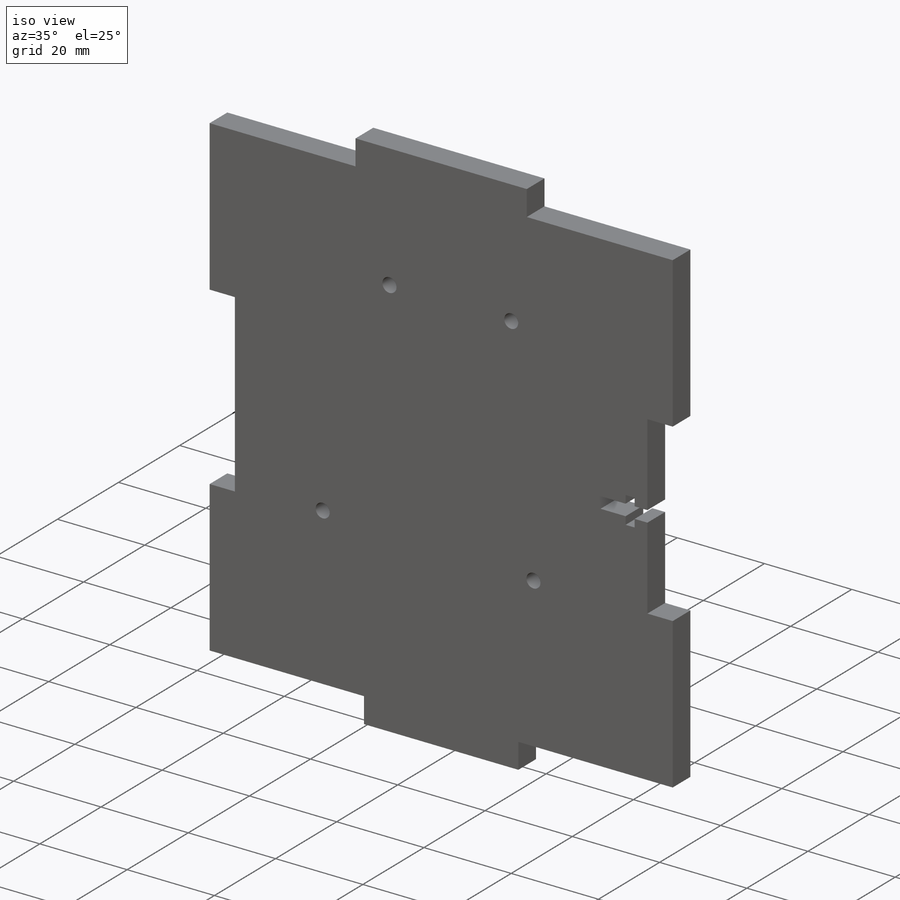
[diagram: iso view]
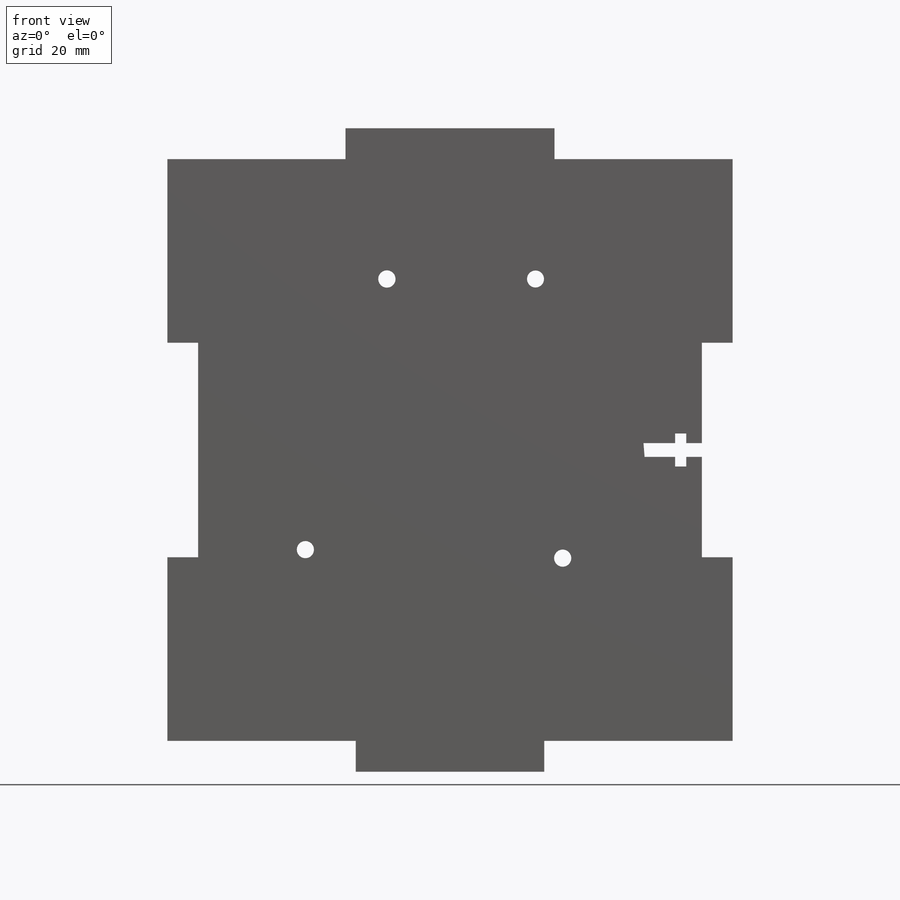
[diagram: front view]
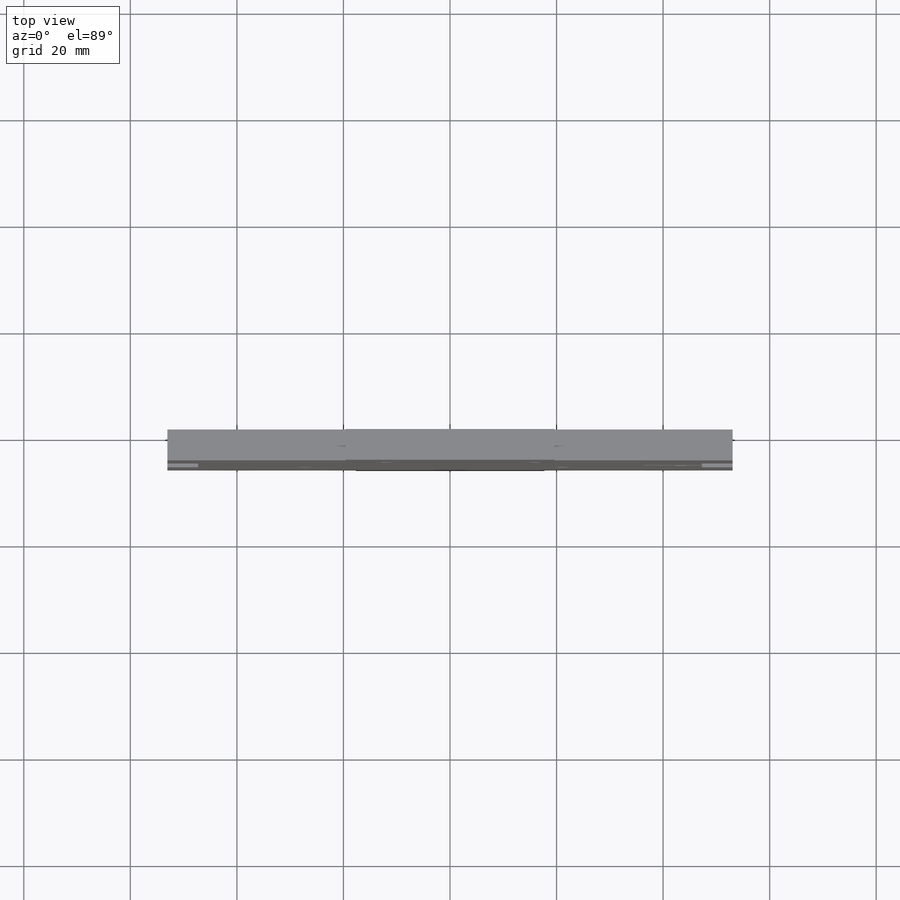
[diagram: top view]
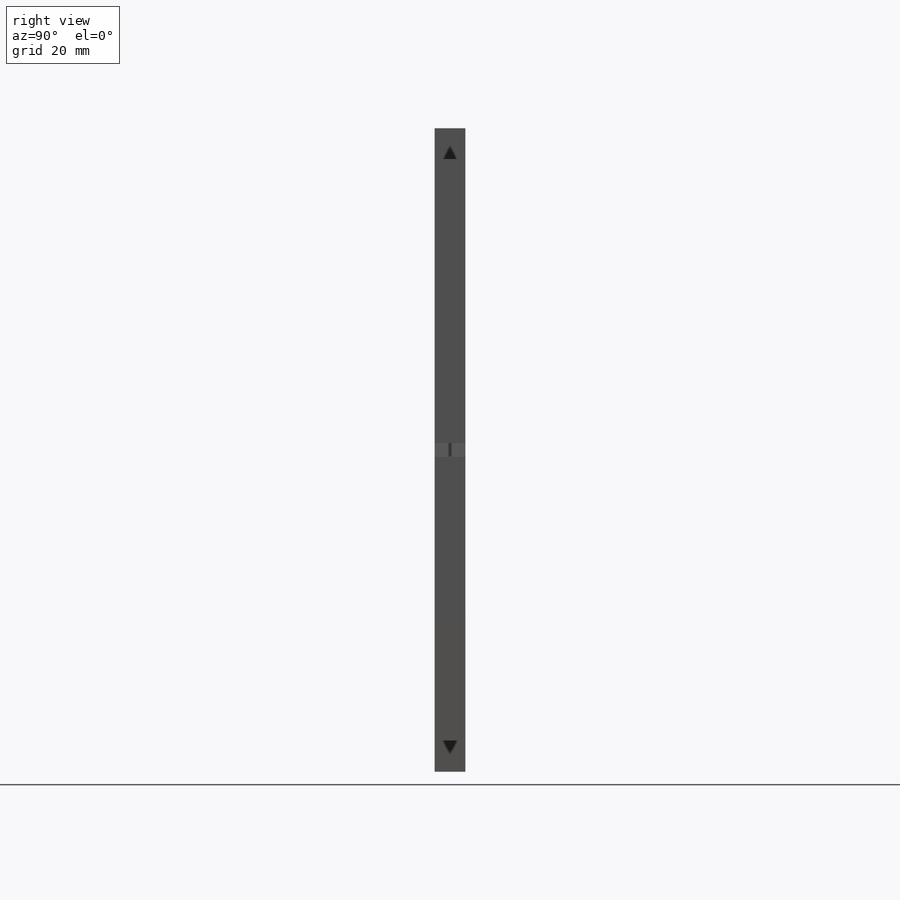
[diagram: right view]
SOLIDWORKS PART (.sldprt)
format: sldprt  version: not decoded by parser v0  size: 505,344 bytes
history: native  units: mm
features: sketch x6, cut_extrude x5, material x1, extrude x1 (+11 scaffold rows collapsed)
feature tree (24):
  scaffold x11  (default folders/planes/origin — collapsed)
  material  "Mahogany"
  sketch  "Sketch1"  dims[D1=106.1212mm D2=120.8024mm]
  extrude  "Boss-Extrude1"  Depth=5.7912mm
  sketch  "Sketch2"  dims[c1.D2=2.6035mm c1.D3=~5.653821mm c1.D4=2.54mm c1.D1=2.9972mm c2.D3=2.9972mm c2.D5=5.7912mm c2.D6=~40.267467mm c2.D7=~40.267467mm c2.D8=~34.052933mm]
  sketch  "Sketch3"  dims[c1.D1=2.6035mm c1.D2=13.5636mm c2.D1=2.6035mm c2.D2=13.7668mm]
  sketch  "Sketch4"  dims[c1.D1=2.0828mm c1.D2=6.1722mm c1.D3=~1.78435mm c2.D1=2.0828mm c2.D2=6.1722mm c2.D3=~1.78435mm]
  sketch  "Sketch6"  dims[D1=5.7912mm D2=5.7912mm D3=~33.443333mm D4=~33.443333mm]
  cut_extrude  "Cut-Extrude4"  [1 undecoded]
  cut_extrude  "Cut-Extrude5"  [1 undecoded]
  cut_extrude  "Cut-Extrude6"  [1 undecoded]
  cut_extrude  "Cut-Extrude7"  [1 undecoded]
  sketch  "Sketch7"
  cut_extrude  "Cut-Extrude8"  [1 undecoded]
decode coverage: 6 of 12 modeling features carry decoded parameters
note: ~ marks probable driven/reference dimensions
note: 5 parameter values undecoded
summary: no parameter record found for 5 features
note: suppression state not decoded; provenance and decode notes live in map.json
